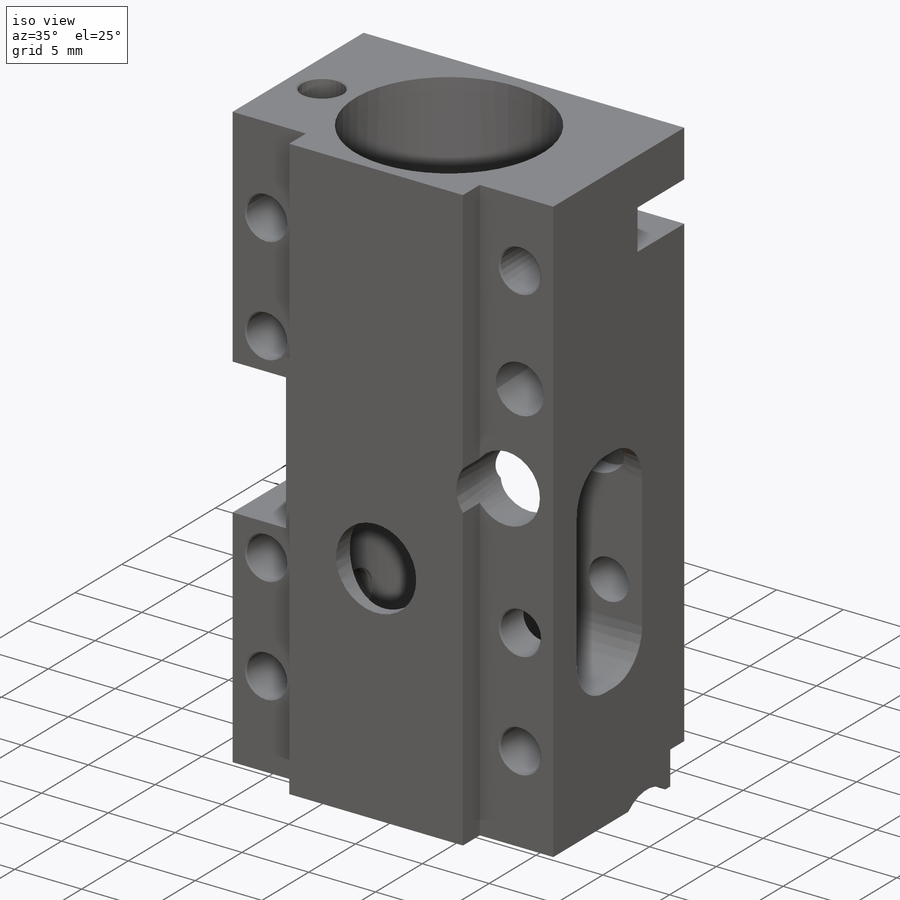
[diagram: iso view]
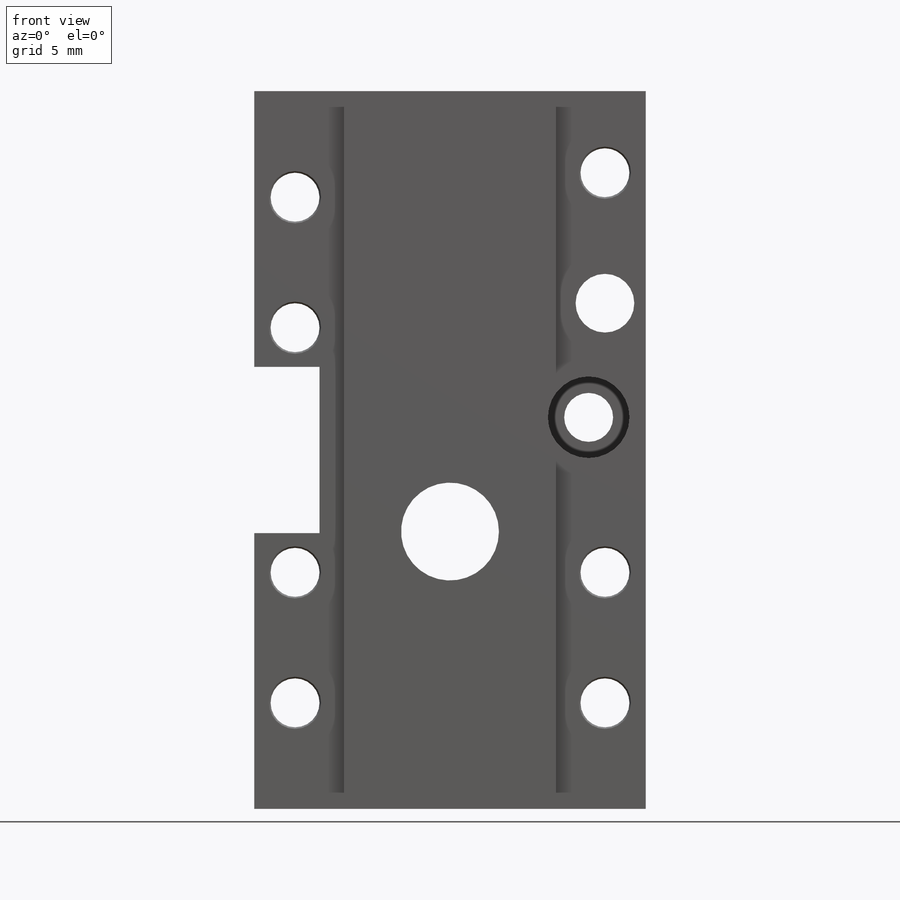
[diagram: front view]
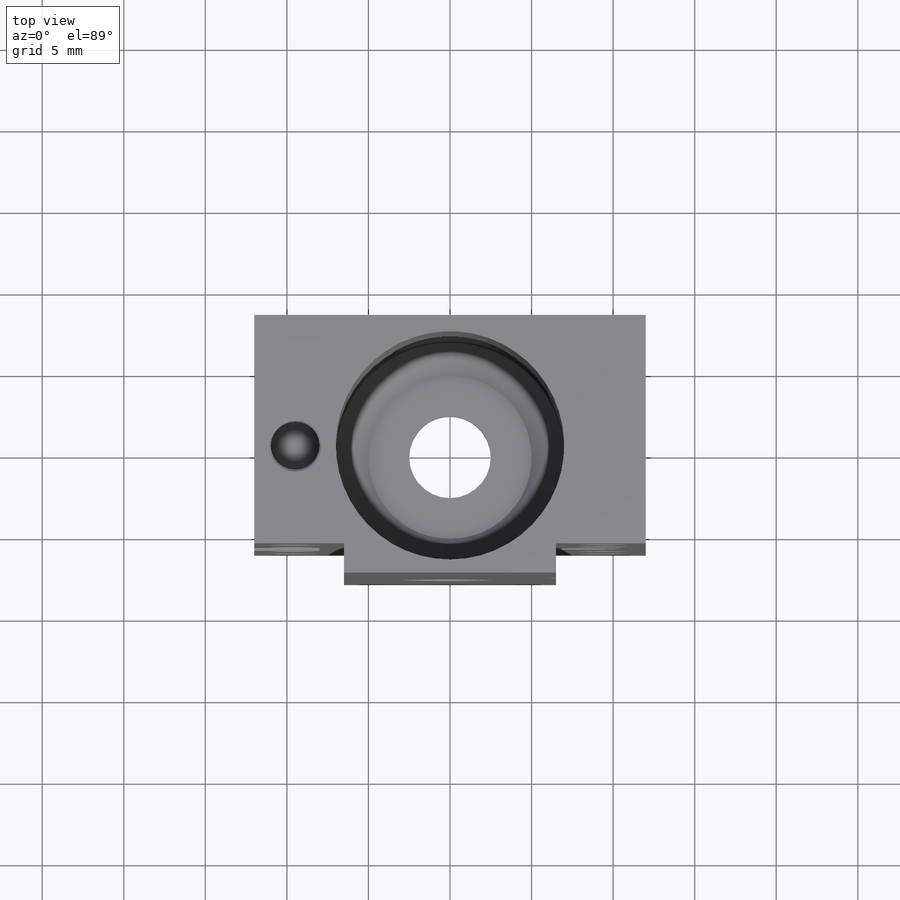
[diagram: top view]
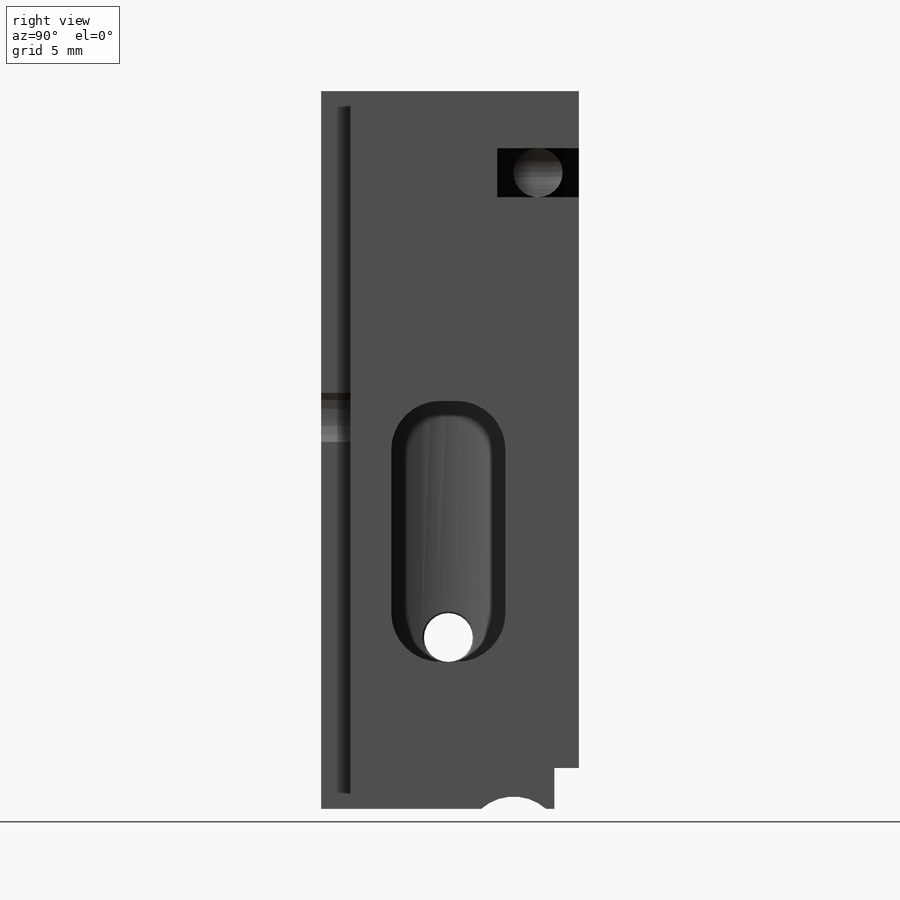
[diagram: right view]
SOLIDWORKS PART (.sldprt)
format: sldprt  version: not decoded by parser v0  size: 650,752 bytes
history: native  units: mm
features: sketch x19, cut_extrude x12, hole x3, material x1, extrude x1, chamfer x1 (+14 scaffold rows collapsed)
feature tree (51):
  scaffold x14  (default folders/planes/origin — collapsed)
  material  "Простая углеродистая сталь"
  sketch  "Эскиз2"  dims[c1.D6=5.0mm c1.D7=5.0mm c1.D1=24.0mm c1.D2=13.0mm c1.D3=4.0mm c1.D4=1.8mm c1.D5=14.0mm c2.D7=6.0mm c2.D8=12.0mm]
  extrude  "Бобышка-Вытянуть1"  Depth=44mm
  sketch  "Эскиз3"  dims[D1=14.0mm]
  cut_extrude  "Вырез-Вытянуть1"  Depth=2mm
  chamfer  "Фаска1"  Distance=2mm Angle=45deg
  sketch  "Эскиз11"  dims[c1.D1=~4.212014mm c2.D1=45.0deg c2.D2=5.0mm]
  cut_extrude  "Вырез-Вытянуть10"  Depth=3mm
  sketch  "Эскиз6"  dims[D1=3.0mm D2=7.0mm D3=16.0mm D4=7.0mm]
  cut_extrude  "Вырез-Вытянуть2"  [1 undecoded]
  sketch  "Эскиз7"  dims[c1.D1=3.0mm c1.D2=7.0mm c1.D3=~19.949333mm c1.D4=1.0mm c2.D3=16.0mm c2.D4=7.0mm]
  cut_extrude  "Вырез-Вытянуть3"  [1 undecoded]
  hole  "Отверстие M3"  [1 undecoded]
  sketch  "Эскиз5"  dims[c1.D1=19.0mm c1.D2=31.0mm c1.D3=6.5mm c2.D2=31.0mm c2.D4=32.5mm c2.D1=19.0mm c2.D5=8.0mm c2.D6=8.0mm]
  sketch  "Эскиз4"  dims[hole-wizard template sketch: 54 standard entries collapsed; hole parameters kept: c17.Диаметр резьбы=3.0mm c17.Глубина проходного сверла=14.0mm c17.Диаметр передней зенковки=3.2mm c17.D4=~3.666174mm c17.Угол передней зенковки=90.0deg]
  sketch  "Эскиз8"  dims[D1=3.0mm D2=9.0mm D3=15.0mm D4=11.0mm]
  cut_extrude  "Вырез-Вытянуть4"  Depth=0.5mm
  sketch  "Эскиз9"  dims[c1.D1=5.0mm c1.D2=4.5mm c1.D3=5.0mm c2.D2=1.5mm c2.D3=17.5mm c3.D2=1.0mm]
  cut_extrude  "Вырез-Вытянуть5"  Depth=11mm
  sketch  "Эскиз10"  dims[c1.D1=3.0mm c1.D2=~3.403306mm c1.D3=~3.403306mm c1.D4=3.6mm c2.D2=7.0mm c2.D3=1.0mm]
  cut_extrude  "Вырез-Вытянуть6"  [1 undecoded]
  hole  "Отверстие M3_1"  [1 undecoded]
  sketch  "Эскиз13"  dims[c1.D1=23.0mm c1.D2=7.5mm c1.D3=10.5mm c2.D2=6.0mm]
  sketch  "Эскиз12"  dims[hole-wizard template sketch: 47 standard entries collapsed; hole parameters kept: c15.Глубина проходного сверла=5.0mm c15.Диаметр передней зенковки=3.2mm c15.D4=~3.666174mm c15.Угол передней зенковки=90.0deg c15.Диаметр задней зенковки=3.2mm c15.D6=~9.919017mm c15.Угол задней зенковки=90.0deg]
  sketch  "Эскиз14"  dims[D2=6.0mm D1=17.0mm]
  cut_extrude  "Вырез-Вытянуть11"  [1 undecoded]
  sketch  "Эскиз15"  dims[c1.D2=3.2mm c1.D1=10.2mm c2.D2=11.5mm]
  cut_extrude  "Вырез-Вытянуть13"  Depth=4mm
  sketch  "Эскиз16"  dims[c1.D3=6.0mm c1.D4=5.5mm c1.D1=2.5mm c1.D2=1.5mm c2.D4=4.0mm c2.D5=0.75mm c3.D4=10.0mm]
  cut_extrude  "Вырез-Вытянуть14"  [1 undecoded]
  sketch  "Эскиз17"  dims[D1=1.1mm D2=36.5mm D3=0.5mm]
  cut_extrude  "паз_под_плату"  [1 undecoded]
  sketch  "Эскиз18"  dims[D1=28.0mm]
  cut_extrude  "Вырез-Вытянуть16"  [1 undecoded]
  hole  "Отверстие обработанное метчиком M31"  [1 undecoded]
  sketch  "Эскиз20"  dims[D1=2.5mm D2=4.0mm]
  sketch  "Эскиз19"  dims[hole-wizard template sketch: 54 standard entries collapsed; hole parameters kept: c17.Диаметр резьбы=3.0mm c17.Глубина проходного сверла=5.0mm c17.Диаметр передней зенковки=3.2mm c17.D4=~3.666174mm c17.Угол передней зенковки=90.0deg]
decode coverage: 26 of 36 modeling features carry decoded parameters
note: ~ marks probable driven/reference dimensions
note: 10 parameter values undecoded
summary: no parameter record found for 10 features
note: suppression state not decoded; provenance and decode notes live in map.json
